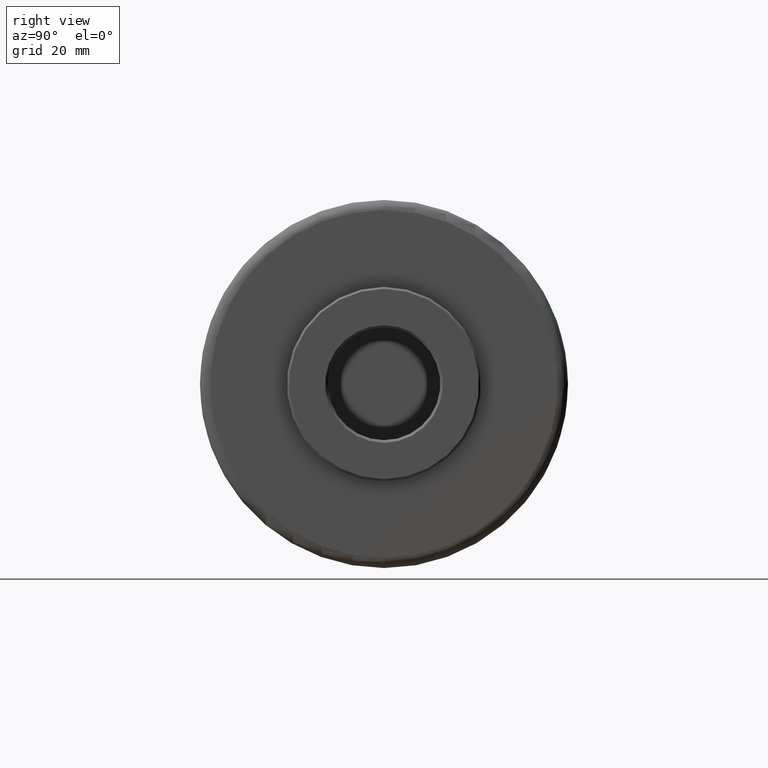
[diagram: clean part render]
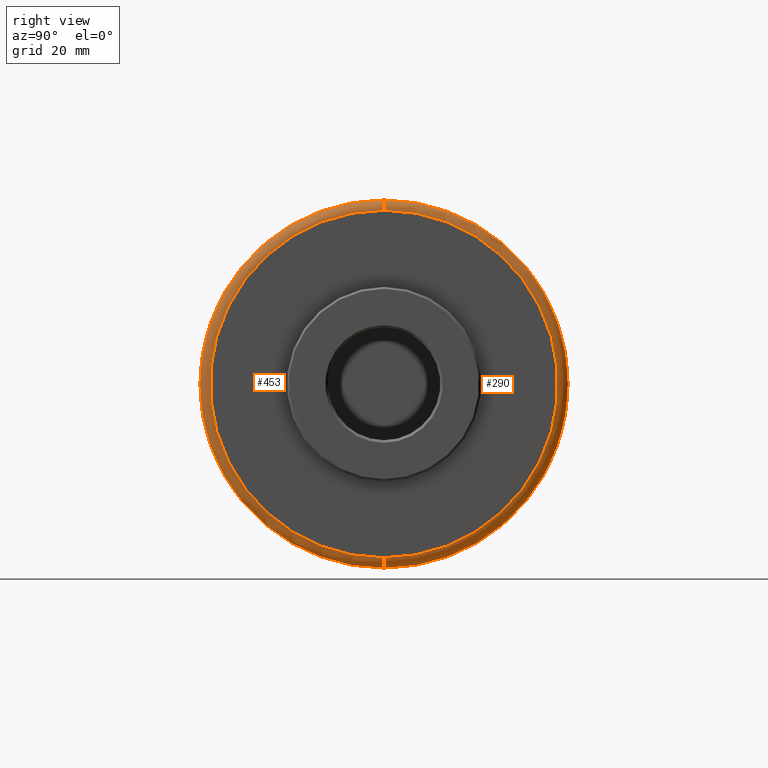
[diagram: same view with one multi-face feature highlighted, each face labeled with its STEP entity id]
A machine part, right view. The highlighted faces form ONE feature: a constant-radius fillet chain: 2 tangent blend faces with common blend radius 2 mm. The faces share edges in the B-rep.
Their STEP definitions:
[1] entity #453 (Torus):
#4 = EDGE_CURVE ( 'NONE', #261, #1118, #1346, .T. ) ;
#15 = VERTEX_POINT ( 'NONE', #1037 ) ;
#49 = CARTESIAN_POINT ( 'NONE',  ( 94.50000000000000000, 4.408728476930472400E-015, -36.00000000000001400 ) ) ;
#152 = AXIS2_PLACEMENT_3D ( 'NONE', #1246, #713, #511 ) ;
#159 = VERTEX_POINT ( 'NONE', #1353 ) ;
#173 = DIRECTION ( 'NONE',  ( 0.0000000000000000000, -1.224646799147353500E-016, 1.000000000000000000 ) ) ;
#261 = VERTEX_POINT ( 'NONE', #49 ) ;
#267 = DIRECTION ( 'NONE',  ( 0.0000000000000000000, 1.000000000000000000, 1.224646799147353200E-016 ) ) ;
#310 = ORIENTED_EDGE ( 'NONE', *, *, #850, .F. ) ;
#334 = EDGE_CURVE ( 'NONE', #15, #1118, #981, .T. ) ;
#356 = CARTESIAN_POINT ( 'NONE',  ( 94.50000000000000000, 0.0000000000000000000, 0.0000000000000000000 ) ) ;
#365 = DIRECTION ( 'NONE',  ( -1.000000000000000000, 0.0000000000000000000, 0.0000000000000000000 ) ) ;
#379 = DIRECTION ( 'NONE',  ( 0.0000000000000000000, 0.0000000000000000000, 1.000000000000000000 ) ) ;
#401 = CARTESIAN_POINT ( 'NONE',  ( 94.50000000000000000, 0.0000000000000000000, 0.0000000000000000000 ) ) ;
#402 = ORIENTED_EDGE ( 'NONE', *, *, #334, .T. ) ;
#410 = DIRECTION ( 'NONE',  ( 1.000000000000000000, -0.0000000000000000000, -0.0000000000000000000 ) ) ;
#431 = DIRECTION ( 'NONE',  ( -1.000000000000000000, 0.0000000000000000000, 0.0000000000000000000 ) ) ;
#435 = EDGE_CURVE ( 'NONE', #15, #159, #641, .T. ) ;
#448 = ORIENTED_EDGE ( 'NONE', *, *, #435, .F. ) ;
#453 = ADVANCED_FACE ( 'NONE', ( #1176 ), #1144, .T. ) ;
#483 = AXIS2_PLACEMENT_3D ( 'NONE', #356, #365, #1003 ) ;
#511 = DIRECTION ( 'NONE',  ( 0.0000000000000000000, 0.0000000000000000000, -1.000000000000000000 ) ) ;
#526 = EDGE_LOOP ( 'NONE', ( #310, #448, #402, #1095 ) ) ;
#540 = AXIS2_PLACEMENT_3D ( 'NONE', #401, #431, #1124 ) ;
#558 = AXIS2_PLACEMENT_3D ( 'NONE', #581, #410, #379 ) ;
#581 = CARTESIAN_POINT ( 'NONE',  ( 96.50000000000000000, 0.0000000000000000000, 0.0000000000000000000 ) ) ;
#641 = CIRCLE ( 'NONE', #558, 34.00000000000000700 ) ;
#713 = DIRECTION ( 'NONE',  ( 0.0000000000000000000, -1.000000000000000000, 0.0000000000000000000 ) ) ;
#772 = CARTESIAN_POINT ( 'NONE',  ( 94.50000000000000000, 0.0000000000000000000, 36.00000000000001400 ) ) ;
#848 = CIRCLE ( 'NONE', #963, 2.000000000000001800 ) ;
#850 = EDGE_CURVE ( 'NONE', #159, #261, #848, .T. ) ;
#963 = AXIS2_PLACEMENT_3D ( 'NONE', #1013, #267, #173 ) ;
#981 = CIRCLE ( 'NONE', #152, 2.000000000000001800 ) ;
#1003 = DIRECTION ( 'NONE',  ( 0.0000000000000000000, 0.0000000000000000000, 1.000000000000000000 ) ) ;
#1013 = CARTESIAN_POINT ( 'NONE',  ( 94.50000000000000000, 4.163799117101001300E-015, -34.00000000000000700 ) ) ;
#1037 = CARTESIAN_POINT ( 'NONE',  ( 96.50000000000000000, 0.0000000000000000000, 34.00000000000000700 ) ) ;
#1095 = ORIENTED_EDGE ( 'NONE', *, *, #4, .F. ) ;
#1118 = VERTEX_POINT ( 'NONE', #772 ) ;
#1124 = DIRECTION ( 'NONE',  ( 0.0000000000000000000, 0.0000000000000000000, 1.000000000000000000 ) ) ;
#1144 = TOROIDAL_SURFACE ( 'NONE', #483, 34.00000000000000700, 2.000000000000000000 ) ;
#1176 = FACE_OUTER_BOUND ( 'NONE', #526, .T. ) ;
#1246 = CARTESIAN_POINT ( 'NONE',  ( 94.50000000000000000, 0.0000000000000000000, 34.00000000000000700 ) ) ;
#1346 = CIRCLE ( 'NONE', #540, 36.00000000000001400 ) ;
#1353 = CARTESIAN_POINT ( 'NONE',  ( 96.50000000000000000, 4.286263797015737300E-015, -34.00000000000000700 ) ) ;
[2] entity #290 (Torus):
#15 = VERTEX_POINT ( 'NONE', #1037 ) ;
#37 = CARTESIAN_POINT ( 'NONE',  ( 94.50000000000000000, 0.0000000000000000000, 0.0000000000000000000 ) ) ;
#49 = CARTESIAN_POINT ( 'NONE',  ( 94.50000000000000000, 4.408728476930472400E-015, -36.00000000000001400 ) ) ;
#152 = AXIS2_PLACEMENT_3D ( 'NONE', #1246, #713, #511 ) ;
#159 = VERTEX_POINT ( 'NONE', #1353 ) ;
#173 = DIRECTION ( 'NONE',  ( 0.0000000000000000000, -1.224646799147353500E-016, 1.000000000000000000 ) ) ;
#200 = DIRECTION ( 'NONE',  ( -1.000000000000000000, 0.0000000000000000000, 0.0000000000000000000 ) ) ;
#217 = CARTESIAN_POINT ( 'NONE',  ( 96.50000000000000000, 0.0000000000000000000, 0.0000000000000000000 ) ) ;
#261 = VERTEX_POINT ( 'NONE', #49 ) ;
#262 = DIRECTION ( 'NONE',  ( -1.000000000000000000, 0.0000000000000000000, 0.0000000000000000000 ) ) ;
#267 = DIRECTION ( 'NONE',  ( 0.0000000000000000000, 1.000000000000000000, 1.224646799147353200E-016 ) ) ;
#268 = EDGE_CURVE ( 'NONE', #1118, #261, #560, .T. ) ;
#290 = ADVANCED_FACE ( 'NONE', ( #815 ), #534, .T. ) ;
#334 = EDGE_CURVE ( 'NONE', #15, #1118, #981, .T. ) ;
#347 = AXIS2_PLACEMENT_3D ( 'NONE', #217, #998, #821 ) ;
#373 = EDGE_CURVE ( 'NONE', #159, #15, #394, .T. ) ;
#387 = ORIENTED_EDGE ( 'NONE', *, *, #850, .T. ) ;
#394 = CIRCLE ( 'NONE', #347, 34.00000000000000700 ) ;
#511 = DIRECTION ( 'NONE',  ( 0.0000000000000000000, 0.0000000000000000000, -1.000000000000000000 ) ) ;
#534 = TOROIDAL_SURFACE ( 'NONE', #862, 34.00000000000000700, 2.000000000000000000 ) ;
#554 = CARTESIAN_POINT ( 'NONE',  ( 94.50000000000000000, 0.0000000000000000000, 0.0000000000000000000 ) ) ;
#560 = CIRCLE ( 'NONE', #1083, 36.00000000000001400 ) ;
#565 = DIRECTION ( 'NONE',  ( 0.0000000000000000000, 0.0000000000000000000, 1.000000000000000000 ) ) ;
#713 = DIRECTION ( 'NONE',  ( 0.0000000000000000000, -1.000000000000000000, 0.0000000000000000000 ) ) ;
#772 = CARTESIAN_POINT ( 'NONE',  ( 94.50000000000000000, 0.0000000000000000000, 36.00000000000001400 ) ) ;
#815 = FACE_OUTER_BOUND ( 'NONE', #1060, .T. ) ;
#821 = DIRECTION ( 'NONE',  ( 0.0000000000000000000, 0.0000000000000000000, 1.000000000000000000 ) ) ;
#848 = CIRCLE ( 'NONE', #963, 2.000000000000001800 ) ;
#850 = EDGE_CURVE ( 'NONE', #159, #261, #848, .T. ) ;
#854 = ORIENTED_EDGE ( 'NONE', *, *, #268, .F. ) ;
#862 = AXIS2_PLACEMENT_3D ( 'NONE', #554, #262, #565 ) ;
#954 = ORIENTED_EDGE ( 'NONE', *, *, #373, .F. ) ;
#963 = AXIS2_PLACEMENT_3D ( 'NONE', #1013, #267, #173 ) ;
#981 = CIRCLE ( 'NONE', #152, 2.000000000000001800 ) ;
#998 = DIRECTION ( 'NONE',  ( 1.000000000000000000, -0.0000000000000000000, -0.0000000000000000000 ) ) ;
#1013 = CARTESIAN_POINT ( 'NONE',  ( 94.50000000000000000, 4.163799117101001300E-015, -34.00000000000000700 ) ) ;
#1037 = CARTESIAN_POINT ( 'NONE',  ( 96.50000000000000000, 0.0000000000000000000, 34.00000000000000700 ) ) ;
#1060 = EDGE_LOOP ( 'NONE', ( #954, #387, #854, #1263 ) ) ;
#1083 = AXIS2_PLACEMENT_3D ( 'NONE', #37, #200, #1157 ) ;
#1118 = VERTEX_POINT ( 'NONE', #772 ) ;
#1157 = DIRECTION ( 'NONE',  ( 0.0000000000000000000, 0.0000000000000000000, 1.000000000000000000 ) ) ;
#1246 = CARTESIAN_POINT ( 'NONE',  ( 94.50000000000000000, 0.0000000000000000000, 34.00000000000000700 ) ) ;
#1263 = ORIENTED_EDGE ( 'NONE', *, *, #334, .F. ) ;
#1353 = CARTESIAN_POINT ( 'NONE',  ( 96.50000000000000000, 4.286263797015737300E-015, -34.00000000000000700 ) ) ;